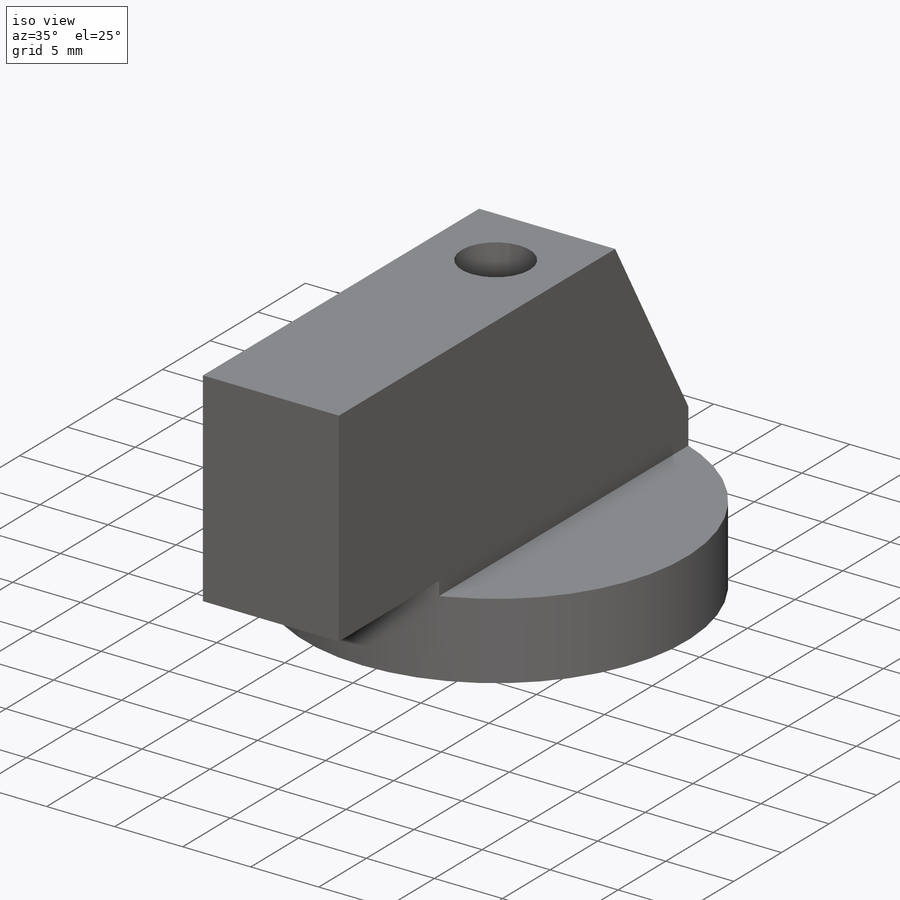
[diagram: iso view]
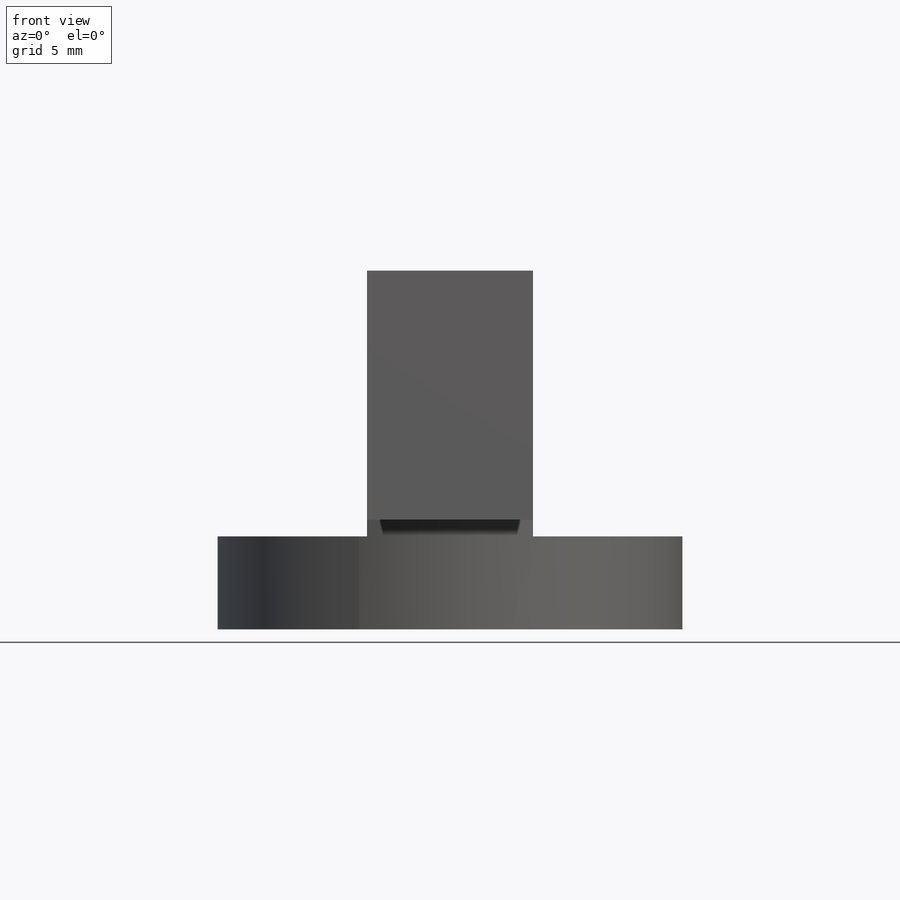
[diagram: front view]
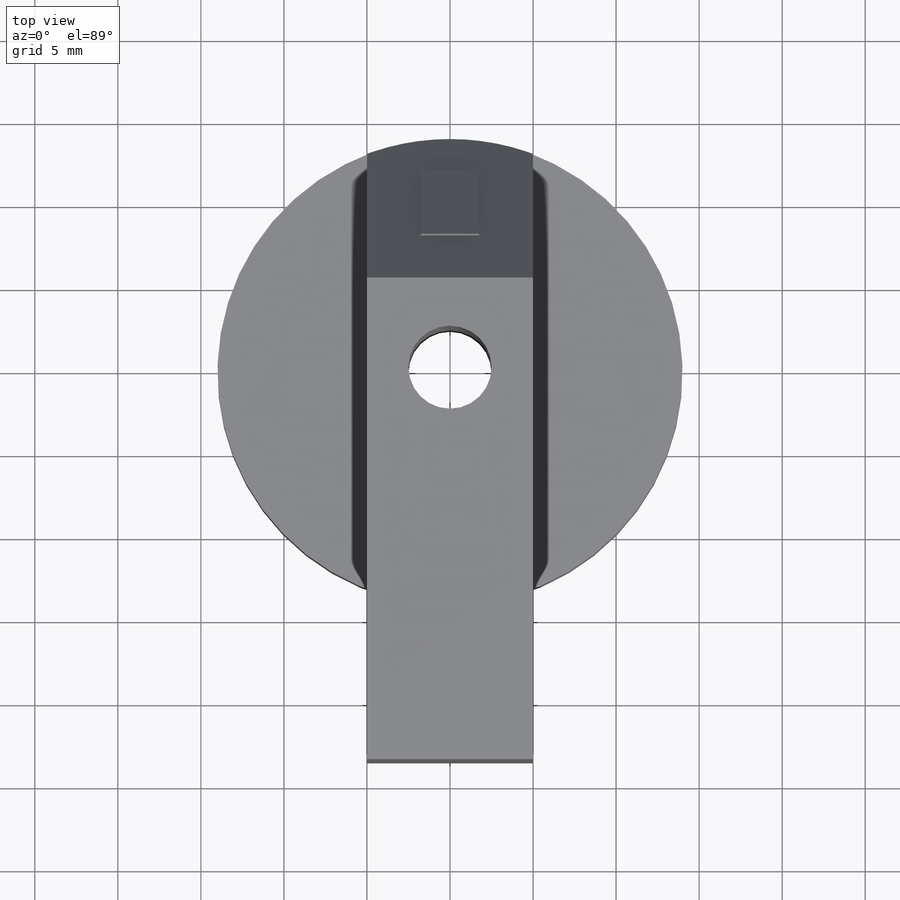
[diagram: top view]
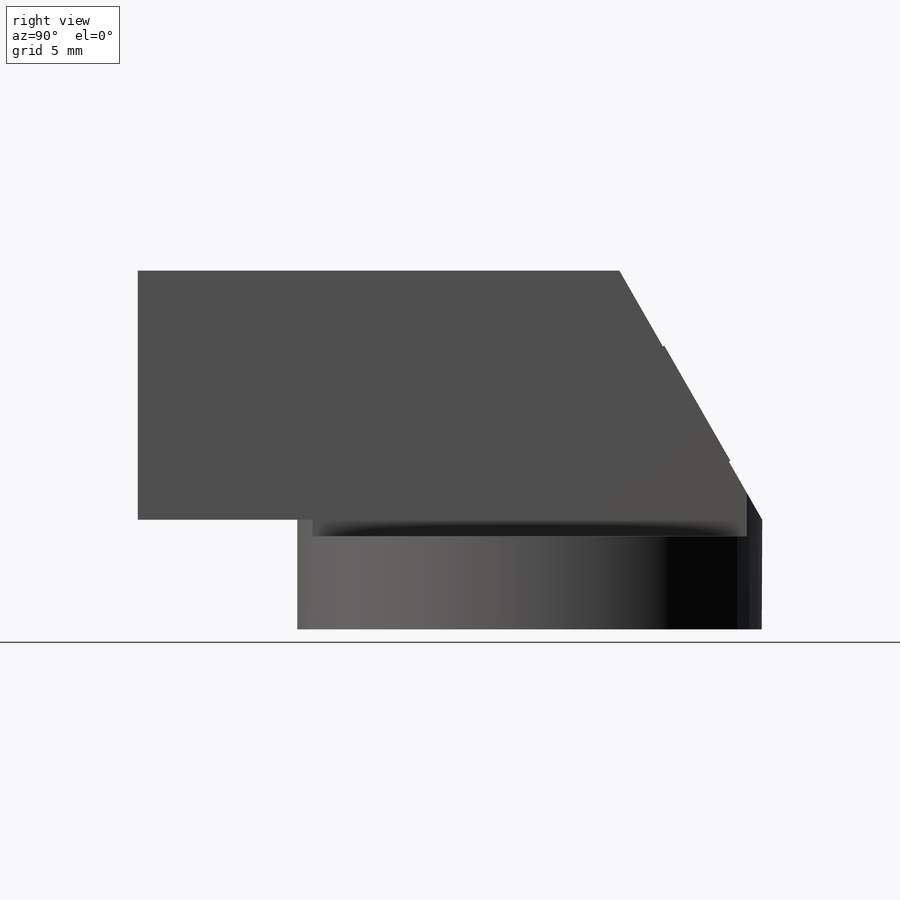
[diagram: right view]
SOLIDWORKS PART (.sldprt)
format: sldprt  version: not decoded by parser v0  size: 188,928 bytes
history: native  units: mm
features: sketch x6, plane x3, extrude x3, cut_extrude x3, material x1 (+10 scaffold rows collapsed)
feature tree (26):
  scaffold x10  (default folders/planes/origin — collapsed)
  material  "Malzeme <belirli değil>"
  plane  "Ön Düzlem"
  plane  "Üst Düzlem"
  plane  "Sağ Düzlem"
  sketch  "Çizim1"  dims[D1=28.0mm]
  extrude  "Yükseklik-Ekstrüzyon1"  Depth=5.6mm
  sketch  "Çizim2"  dims[D1=15.0mm D2=21.6mm D3=29.0mm D4=37.6mm]
  extrude  "Yükseklik-Ekstrüzyon2"  Depth=10mm
  sketch  "Çizim3"
  cut_extrude  "Kes-Ekstrüzyon1"  [1 undecoded]
  sketch  "Çizim4"
  cut_extrude  "Kes-Ekstrüzyon2"  Depth=10mm
  sketch  "Çizim5"  dims[D1=5.0mm]
  cut_extrude  "Kes-Ekstrüzyon3"  [1 undecoded]
  sketch  "Çizim6"  dims[D1=3.5mm D2=8.0mm D3=3.25mm]
  extrude  "Yükseklik-Ekstrüzyon3"  Depth=0.1mm
decode coverage: 8 of 12 modeling features carry decoded parameters
note: 2 parameter values undecoded
note: suppression state not decoded; provenance and decode notes live in map.json
